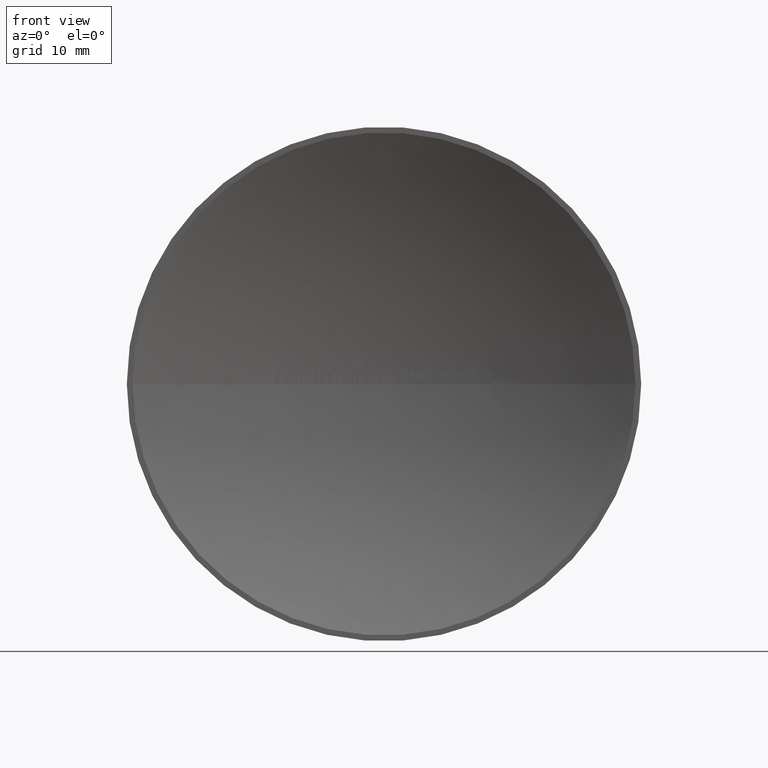
[diagram: clean part render]
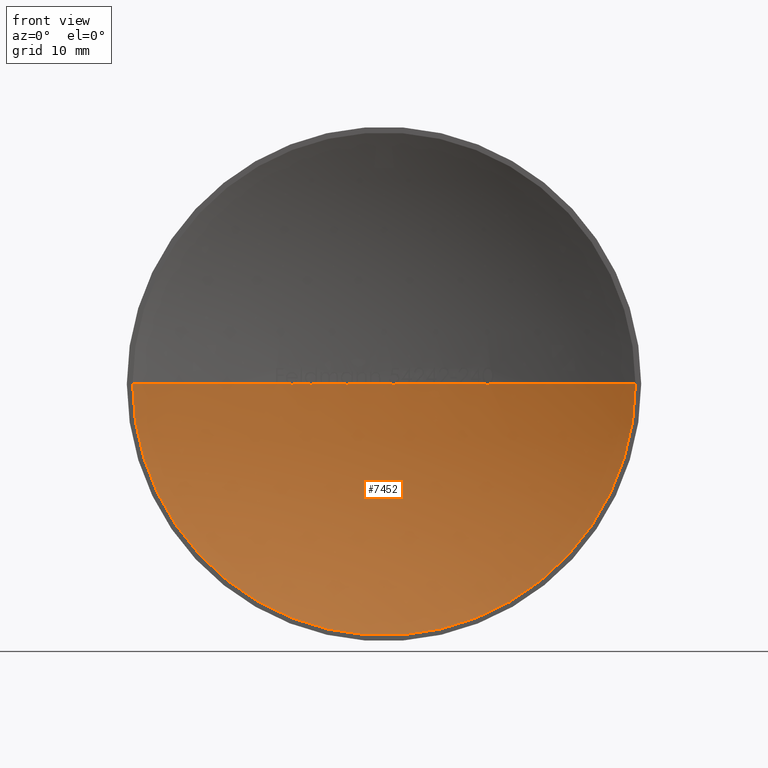
[diagram: same view with one face highlighted and labeled with its STEP entity id]
A machine part, front view. The second image highlights one B-rep face of the part: STEP entity #7452.
In plain terms, the highlighted spherical surface has radius 45.444 mm.
Its self-contained STEP definition (entity closure, byte-faithful):
#7 = VERTEX_POINT ( 'NONE', #5060 ) ;
#52 = AXIS2_PLACEMENT_3D ( 'NONE', #4242, #3375, #9981 ) ;
#78 = EDGE_CURVE ( 'NONE', #3288, #359, #9151, .T. ) ;
#129 = CARTESIAN_POINT ( 'NONE',  ( 1.386522870055565900E-014, -40.44399999999998800, 0.0000000000000000000 ) ) ;
#145 = VERTEX_POINT ( 'NONE', #4359 ) ;
#146 = EDGE_CURVE ( 'NONE', #7939, #9026, #4149, .T. ) ;
#153 = AXIS2_PLACEMENT_3D ( 'NONE', #7680, #2994, #9582 ) ;
#170 = CARTESIAN_POINT ( 'NONE',  ( 1.386522870055565900E-014, -40.44399999999998800, 0.0000000000000000000 ) ) ;
#206 = AXIS2_PLACEMENT_3D ( 'NONE', #7476, #4764, #7519 ) ;
#218 = CARTESIAN_POINT ( 'NONE',  ( -7.582456212016858800, 4.362955640970882100, -0.01618476864004236500 ) ) ;
#221 = AXIS2_PLACEMENT_3D ( 'NONE', #6128, #500, #341 ) ;
#223 = DIRECTION ( 'NONE',  ( 1.000000000000000000, 0.0000000000000000000, 0.0000000000000000000 ) ) ;
#244 = DIRECTION ( 'NONE',  ( -1.224646799147353200E-016, 8.490003973790729900E-031, -1.000000000000000000 ) ) ;
#252 = EDGE_CURVE ( 'NONE', #3780, #11537, #4039, .T. ) ;
#255 = AXIS2_PLACEMENT_3D ( 'NONE', #2142, #8778, #8849 ) ;
#278 = EDGE_CURVE ( 'NONE', #856, #11934, #3859, .T. ) ;
#279 = VERTEX_POINT ( 'NONE', #10754 ) ;
#290 = AXIS2_PLACEMENT_3D ( 'NONE', #11073, #6303, #7310 ) ;
#325 = DIRECTION ( 'NONE',  ( 1.000000000000000000, 0.0000000000000000000, 0.0000000000000000000 ) ) ;
#341 = DIRECTION ( 'NONE',  ( 1.000000000000000000, 0.0000000000000000000, 0.0000000000000000000 ) ) ;
#349 = CARTESIAN_POINT ( 'NONE',  ( 1.386522870055565900E-014, -40.44399999999998800, 0.0000000000000000000 ) ) ;
#359 = VERTEX_POINT ( 'NONE', #482 ) ;
#369 = VERTEX_POINT ( 'NONE', #8852 ) ;
#397 = DIRECTION ( 'NONE',  ( 0.0000000000000000000, 0.0000000000000000000, 1.000000000000000000 ) ) ;
#428 = DIRECTION ( 'NONE',  ( 1.000000000000000000, 0.0000000000000000000, 0.0000000000000000000 ) ) ;
#460 = B_SPLINE_CURVE_WITH_KNOTS ( 'NONE', 3,
 ( #7863, #8808, #7253, #6214, #9013, #3445, #8142, #5281 ),
 .UNSPECIFIED., .F., .F.,
 ( 4, 2, 2, 4 ),
 ( 0.0000000000000000000, 0.07062578528318842800, 0.1412515705663768600, 0.2825031411327537100 ),
 .UNSPECIFIED. ) ;
#482 = CARTESIAN_POINT ( 'NONE',  ( -2.927779441602983600, 4.905589112941658700, 1.295946971215684800E-006 ) ) ;
#500 = DIRECTION ( 'NONE',  ( 0.0000000000000000000, -0.0000000000000000000, 1.000000000000000000 ) ) ;
#504 = CARTESIAN_POINT ( 'NONE',  ( -3.007945862783082200, 4.900341785941842300, -0.01425342020220563500 ) ) ;
#526 = VERTEX_POINT ( 'NONE', #5497 ) ;
#602 = AXIS2_PLACEMENT_3D ( 'NONE', #4160, #397, #1350 ) ;
#617 = AXIS2_PLACEMENT_3D ( 'NONE', #9039, #4139, #5390 ) ;
#635 = DIRECTION ( 'NONE',  ( 0.0000000000000000000, -0.0000000000000000000, 1.000000000000000000 ) ) ;
#669 = EDGE_CURVE ( 'NONE', #6493, #3288, #9743, .T. ) ;
#718 = DIRECTION ( 'NONE',  ( 0.0000000000000000000, -0.0000000000000000000, 1.000000000000000000 ) ) ;
#720 = CARTESIAN_POINT ( 'NONE',  ( 0.9605261113449387000, 4.989857201741528100, -0.01174385527457223900 ) ) ;
#736 = ORIENTED_EDGE ( 'NONE', *, *, #12190, .T. ) ;
#772 = CARTESIAN_POINT ( 'NONE',  ( 8.719402869231778700, 4.155653869194582100, 1.965522731440673900E-005 ) ) ;
#773 = CIRCLE ( 'NONE', #1276, 45.44399999999997400 ) ;
#782 = DIRECTION ( 'NONE',  ( -1.000000000000000000, 6.871099059850044800E-015, 0.0000000000000000000 ) ) ;
#786 = EDGE_CURVE ( 'NONE', #3008, #7677, #5156, .T. ) ;
#801 = CARTESIAN_POINT ( 'NONE',  ( 0.9897537555830285800, 4.989220405862267800, -9.326486359456310800E-007 ) ) ;
#827 = CIRCLE ( 'NONE', #11592, 45.44399999999997400 ) ;
#838 = EDGE_CURVE ( 'NONE', #2328, #10165, #5437, .T. ) ;
#856 = VERTEX_POINT ( 'NONE', #3774 ) ;
#893 = ORIENTED_EDGE ( 'NONE', *, *, #786, .T. ) ;
#906 = CARTESIAN_POINT ( 'NONE',  ( 1.386522870055565900E-014, -40.44399999999998800, 0.0000000000000000000 ) ) ;
#977 = CIRCLE ( 'NONE', #9793, 45.44399999999997400 ) ;
#985 = CIRCLE ( 'NONE', #10105, 45.44399999999997400 ) ;
#1014 = AXIS2_PLACEMENT_3D ( 'NONE', #1416, #4273, #428 ) ;
#1016 = CARTESIAN_POINT ( 'NONE',  ( 1.386522870055565900E-014, -40.44399999999998800, 0.0000000000000000000 ) ) ;
#1065 = B_SPLINE_CURVE_WITH_KNOTS ( 'NONE', 3,
 ( #8885, #5130, #3243, #504, #5051, #11681, #3327, #7093 ),
 .UNSPECIFIED., .F., .F.,
 ( 4, 2, 2, 4 ),
 ( 0.6914063874239542200, 0.8457031937119785500, 0.9228515968559892800, 1.000000000000000000 ),
 .UNSPECIFIED. ) ;
#1086 = EDGE_CURVE ( 'NONE', #5740, #8655, #3537, .T. ) ;
#1103 = EDGE_CURVE ( 'NONE', #1639, #2254, #6912, .T. ) ;
#1105 = AXIS2_PLACEMENT_3D ( 'NONE', #1783, #6442, #782 ) ;
#1125 = CARTESIAN_POINT ( 'NONE',  ( -6.034217247596137300, 4.597592673342118600, -0.01696047008547005300 ) ) ;
#1170 = EDGE_CURVE ( 'NONE', #4418, #10795, #5742, .T. ) ;
#1178 = AXIS2_PLACEMENT_3D ( 'NONE', #11532, #4035, #11601 ) ;
#1195 = AXIS2_PLACEMENT_3D ( 'NONE', #7529, #1899, #2054 ) ;
#1237 = ORIENTED_EDGE ( 'NONE', *, *, #8596, .T. ) ;
#1276 = AXIS2_PLACEMENT_3D ( 'NONE', #12066, #6152, #3346 ) ;
#1300 = VERTEX_POINT ( 'NONE', #5783 ) ;
#1315 = ORIENTED_EDGE ( 'NONE', *, *, #9351, .T. ) ;
#1318 = ORIENTED_EDGE ( 'NONE', *, *, #3942, .T. ) ;
#1348 = ORIENTED_EDGE ( 'NONE', *, *, #5861, .T. ) ;
#1350 = DIRECTION ( 'NONE',  ( 1.000000000000000000, 0.0000000000000000000, 0.0000000000000000000 ) ) ;
#1396 = CARTESIAN_POINT ( 'NONE',  ( -7.711140330123209100, 4.341010751451182000, -0.01015618114161870000 ) ) ;
#1416 = CARTESIAN_POINT ( 'NONE',  ( 1.386522870055565900E-014, -40.44399999999998800, 0.0000000000000000000 ) ) ;
#1472 = ORIENTED_EDGE ( 'NONE', *, *, #7275, .T. ) ;
#1517 = EDGE_CURVE ( 'NONE', #7796, #4431, #5283, .T. ) ;
#1535 = ORIENTED_EDGE ( 'NONE', *, *, #6144, .T. ) ;
#1556 = CARTESIAN_POINT ( 'NONE',  ( 1.386522870055565900E-014, -40.44399999999998800, 0.0000000000000000000 ) ) ;
#1561 = CARTESIAN_POINT ( 'NONE',  ( 1.386522870055565900E-014, -40.44399999999998800, 0.0000000000000000000 ) ) ;
#1563 = ORIENTED_EDGE ( 'NONE', *, *, #4352, .T. ) ;
#1576 = ORIENTED_EDGE ( 'NONE', *, *, #4584, .T. ) ;
#1585 = DIRECTION ( 'NONE',  ( 0.0000000000000000000, 0.0000000000000000000, 1.000000000000000000 ) ) ;
#1590 = ORIENTED_EDGE ( 'NONE', *, *, #5166, .T. ) ;
#1627 = ORIENTED_EDGE ( 'NONE', *, *, #11787, .T. ) ;
#1639 = VERTEX_POINT ( 'NONE', #5346 ) ;
#1656 = ORIENTED_EDGE ( 'NONE', *, *, #8991, .T. ) ;
#1687 = CIRCLE ( 'NONE', #11232, 45.44399999999997400 ) ;
#1695 = AXIS2_PLACEMENT_3D ( 'NONE', #4602, #1585, #8182 ) ;
#1713 = AXIS2_PLACEMENT_3D ( 'NONE', #9282, #3133, #10676 ) ;
#1718 = CARTESIAN_POINT ( 'NONE',  ( -5.130542200854689500, 4.709456929954412500, 3.686469099980435000E-015 ) ) ;
#1722 = CIRCLE ( 'NONE', #10042, 45.44399999999997400 ) ;
#1725 = DIRECTION ( 'NONE',  ( 1.000000000000000000, 0.0000000000000000000, 0.0000000000000000000 ) ) ;
#1774 = EDGE_CURVE ( 'NONE', #7549, #2328, #9438, .T. ) ;
#1783 = CARTESIAN_POINT ( 'NONE',  ( 1.386522870055565900E-014, -40.44399999999998800, 0.0000000000000000000 ) ) ;
#1899 = DIRECTION ( 'NONE',  ( 0.0000000000000000000, -0.0000000000000000000, 1.000000000000000000 ) ) ;
#1901 = CIRCLE ( 'NONE', #7875, 45.44399999999997400 ) ;
#1946 = AXIS2_PLACEMENT_3D ( 'NONE', #7140, #9056, #6183 ) ;
#1953 = ORIENTED_EDGE ( 'NONE', *, *, #11070, .T. ) ;
#2003 = DIRECTION ( 'NONE',  ( 1.000000000000000000, 0.0000000000000000000, 0.0000000000000000000 ) ) ;
#2039 = VERTEX_POINT ( 'NONE', #9945 ) ;
#2054 = DIRECTION ( 'NONE',  ( 1.000000000000000000, 0.0000000000000000000, 0.0000000000000000000 ) ) ;
#2058 = DIRECTION ( 'NONE',  ( 1.000000000000000000, 0.0000000000000000000, 0.0000000000000000000 ) ) ;
#2104 = VERTEX_POINT ( 'NONE', #7353 ) ;
#2108 = CARTESIAN_POINT ( 'NONE',  ( 6.080328525641036200, 4.591394314031214600, -1.534501925701806600E-015 ) ) ;
#2126 = CARTESIAN_POINT ( 'NONE',  ( 1.386522870055565900E-014, -40.44399999999998800, 0.0000000000000000000 ) ) ;
#2142 = CARTESIAN_POINT ( 'NONE',  ( 1.386522870055565900E-014, -40.44399999999998800, 0.0000000000000000000 ) ) ;
#2156 = EDGE_CURVE ( 'NONE', #7172, #7949, #8833, .T. ) ;
#2240 = CARTESIAN_POINT ( 'NONE',  ( 1.386522870055565900E-014, -40.44399999999998800, 0.0000000000000000000 ) ) ;
#2254 = VERTEX_POINT ( 'NONE', #8731 ) ;
#2316 = CIRCLE ( 'NONE', #6201, 45.44399999999997400 ) ;
#2319 = VERTEX_POINT ( 'NONE', #2355 ) ;
#2328 = VERTEX_POINT ( 'NONE', #4234 ) ;
#2355 = CARTESIAN_POINT ( 'NONE',  ( 0.8021772335737311600, 4.992906772531872800, -0.03392094017094014800 ) ) ;
#2364 = AXIS2_PLACEMENT_3D ( 'NONE', #7458, #12074, #2675 ) ;
#2431 = B_SPLINE_CURVE_WITH_KNOTS ( 'NONE', 3,
 ( #1125, #3032, #4136, #6994 ),
 .UNSPECIFIED., .F., .F.,
 ( 4, 4 ),
 ( 0.0000000000000000000, 0.1700436499754869900 ),
 .UNSPECIFIED. ) ;
#2460 = ORIENTED_EDGE ( 'NONE', *, *, #1086, .F. ) ;
#2534 = DIRECTION ( 'NONE',  ( 1.000000000000000000, 0.0000000000000000000, 0.0000000000000000000 ) ) ;
#2567 = CARTESIAN_POINT ( 'NONE',  ( 1.386522870055565900E-014, -40.44399999999998800, 0.0000000000000000000 ) ) ;
#2568 = DIRECTION ( 'NONE',  ( -1.224646799147353200E-016, 8.490003973790729900E-031, -1.000000000000000000 ) ) ;
#2569 = CARTESIAN_POINT ( 'NONE',  ( 0.9287035031084793800, 4.990515660766046600, -0.02055917929054557100 ) ) ;
#2586 = EDGE_CURVE ( 'NONE', #10036, #145, #5137, .T. ) ;
#2612 = DIRECTION ( 'NONE',  ( 1.000000000000000000, 0.0000000000000000000, 0.0000000000000000000 ) ) ;
#2632 = DIRECTION ( 'NONE',  ( 1.000000000000000000, 0.0000000000000000000, 0.0000000000000000000 ) ) ;
#2642 = B_SPLINE_CURVE_WITH_KNOTS ( 'NONE', 3,
 ( #4086, #11655, #1396, #7910 ),
 .UNSPECIFIED., .F., .F.,
 ( 4, 4 ),
 ( 0.0000000000000000000, 0.1815159384721391800 ),
 .UNSPECIFIED. ) ;
#2646 = AXIS2_PLACEMENT_3D ( 'NONE', #7392, #2738, #11107 ) ;
#2675 = DIRECTION ( 'NONE',  ( 1.000000000000000000, 0.0000000000000000000, 0.0000000000000000000 ) ) ;
#2717 = B_SPLINE_CURVE_WITH_KNOTS ( 'NONE', 3,
 ( #8492, #8692, #8656, #4900, #3016, #11539, #3963, #10561 ),
 .UNSPECIFIED., .F., .F.,
 ( 4, 2, 2, 4 ),
 ( 0.6910400746160250100, 0.8455200373080125100, 0.9227600186540062500, 1.000000000000000000 ),
 .UNSPECIFIED. ) ;
#2718 = DIRECTION ( 'NONE',  ( -1.224646799147353200E-016, 8.490003973790729900E-031, -1.000000000000000000 ) ) ;
#2738 = DIRECTION ( 'NONE',  ( 0.0000000000000000000, 0.0000000000000000000, 1.000000000000000000 ) ) ;
#2766 = ORIENTED_EDGE ( 'NONE', *, *, #5546, .T. ) ;
#2781 = EDGE_CURVE ( 'NONE', #7949, #3247, #8377, .T. ) ;
#2803 = CARTESIAN_POINT ( 'NONE',  ( 1.386522870055565900E-014, -40.44399999999998800, 0.0000000000000000000 ) ) ;
#2841 = EDGE_CURVE ( 'NONE', #7796, #7677, #1901, .T. ) ;
#2879 = ORIENTED_EDGE ( 'NONE', *, *, #11557, .T. ) ;
#2903 = CARTESIAN_POINT ( 'NONE',  ( -7.563314265517511200, 4.366192450077521800, -0.01528958225220305800 ) ) ;
#2914 = CARTESIAN_POINT ( 'NONE',  ( -3.159392084742481900, 4.890060236641784500, -0.01013952956990321100 ) ) ;
#2980 = AXIS2_PLACEMENT_3D ( 'NONE', #4435, #2568, #5494 ) ;
#2989 = ORIENTED_EDGE ( 'NONE', *, *, #7358, .T. ) ;
#2994 = DIRECTION ( 'NONE',  ( 0.0000000000000000000, 0.0000000000000000000, 1.000000000000000000 ) ) ;
#3008 = VERTEX_POINT ( 'NONE', #8940 ) ;
#3016 = CARTESIAN_POINT ( 'NONE',  ( -5.984432103574649300, 4.604236409860476400, -0.01493726915056118300 ) ) ;
#3022 = DIRECTION ( 'NONE',  ( 0.0000000000000000000, -0.0000000000000000000, 1.000000000000000000 ) ) ;
#3032 = CARTESIAN_POINT ( 'NONE',  ( -6.083212377782953900, 4.591029301942148400, -0.01563040907372981500 ) ) ;
#3073 = CIRCLE ( 'NONE', #153, 45.44399999999997400 ) ;
#3095 = DIRECTION ( 'NONE',  ( -1.000000000000000000, 0.0000000000000000000, 1.224646799147353200E-016 ) ) ;
#3107 = B_SPLINE_CURVE_WITH_KNOTS ( 'NONE', 3,
 ( #772, #4530, #3672, #9231 ),
 .UNSPECIFIED., .F., .F.,
 ( 4, 4 ),
 ( 0.8193776625999253900, 1.000000000000000000 ),
 .UNSPECIFIED. ) ;
#3124 = DIRECTION ( 'NONE',  ( 0.0000000000000000000, 0.0000000000000000000, 1.000000000000000000 ) ) ;
#3131 = CARTESIAN_POINT ( 'NONE',  ( -5.520633012820495900, 4.663424523439103600, 3.682710870694032000E-015 ) ) ;
#3133 = DIRECTION ( 'NONE',  ( 0.0000000000000000000, -0.0000000000000000000, 1.000000000000000000 ) ) ;
#3188 = EDGE_CURVE ( 'NONE', #7984, #526, #10606, .T. ) ;
#3243 = CARTESIAN_POINT ( 'NONE',  ( -2.973094060320622800, 4.902645914867394900, -0.01009331753702295100 ) ) ;
#3247 = VERTEX_POINT ( 'NONE', #5377 ) ;
#3284 = EDGE_CURVE ( 'NONE', #3247, #5040, #4546, .T. ) ;
#3288 = VERTEX_POINT ( 'NONE', #4822 ) ;
#3327 = CARTESIAN_POINT ( 'NONE',  ( -3.050867774167456100, 4.897474395146863600, -0.01660656195834299800 ) ) ;
#3346 = DIRECTION ( 'NONE',  ( -1.000000000000000000, 0.0000000000000000000, 1.224646799147353200E-016 ) ) ;
#3375 = DIRECTION ( 'NONE',  ( -1.224646799147353200E-016, 8.490003973790729900E-031, -1.000000000000000000 ) ) ;
#3391 = ORIENTED_EDGE ( 'NONE', *, *, #2586, .T. ) ;
#3422 = ORIENTED_EDGE ( 'NONE', *, *, #11078, .F. ) ;
#3445 = CARTESIAN_POINT ( 'NONE',  ( 0.6866705201724397900, 4.994817484445439600, -0.01999474291888657400 ) ) ;
#3453 = AXIS2_PLACEMENT_3D ( 'NONE', #5683, #8537, #6530 ) ;
#3462 = ORIENTED_EDGE ( 'NONE', *, *, #2841, .F. ) ;
#3537 = CIRCLE ( 'NONE', #2980, 45.44399999999997400 ) ;
#3602 = VERTEX_POINT ( 'NONE', #6989 ) ;
#3620 = ORIENTED_EDGE ( 'NONE', *, *, #3284, .T. ) ;
#3629 = EDGE_CURVE ( 'NONE', #7226, #8819, #5715, .T. ) ;
#3672 = CARTESIAN_POINT ( 'NONE',  ( 8.617730619931162300, 4.175440570265496200, -0.03305188456763583100 ) ) ;
#3700 = ORIENTED_EDGE ( 'NONE', *, *, #7247, .T. ) ;
#3727 = ORIENTED_EDGE ( 'NONE', *, *, #7583, .F. ) ;
#3774 = CARTESIAN_POINT ( 'NONE',  ( 8.719402869231778700, 4.155653869194582100, 1.965522731440673900E-005 ) ) ;
#3780 = VERTEX_POINT ( 'NONE', #10522 ) ;
#3859 = CIRCLE ( 'NONE', #52, 45.44399999999997400 ) ;
#3860 = CARTESIAN_POINT ( 'NONE',  ( -7.597584501210573800, 4.360392700711645200, -0.01662976280044111900 ) ) ;
#3872 = ORIENTED_EDGE ( 'NONE', *, *, #9295, .T. ) ;
#3883 = DIRECTION ( 'NONE',  ( 0.0000000000000000000, -0.0000000000000000000, 1.000000000000000000 ) ) ;
#3942 = EDGE_CURVE ( 'NONE', #8819, #5190, #9256, .T. ) ;
#3946 = CARTESIAN_POINT ( 'NONE',  ( -3.114818949246199500, 4.893150076404786800, -0.01563885616926038300 ) ) ;
#3948 = DIRECTION ( 'NONE',  ( 1.000000000000000000, -6.932614350277812000E-015, 0.0000000000000000000 ) ) ;
#3963 = CARTESIAN_POINT ( 'NONE',  ( -6.018974226888147400, 4.599634912213809400, -0.01660712265325138900 ) ) ;
#3980 = CARTESIAN_POINT ( 'NONE',  ( -7.490817516281964600, 4.378374364655221600, -0.005486537845554070000 ) ) ;
#4035 = DIRECTION ( 'NONE',  ( 0.0000000000000000000, 0.0000000000000000000, 1.000000000000000000 ) ) ;
#4039 = B_SPLINE_CURVE_WITH_KNOTS ( 'NONE', 3,
 ( #6634, #3946, #2914, #5745 ),
 .UNSPECIFIED., .F., .F.,
 ( 4, 4 ),
 ( 0.0000000000000000000, 0.1700437790953350500 ),
 .UNSPECIFIED. ) ;
#4051 = CIRCLE ( 'NONE', #10544, 45.44399999999997400 ) ;
#4086 = CARTESIAN_POINT ( 'NONE',  ( -7.612335987580124200, 4.357888232022613600, -0.01696047008547008100 ) ) ;
#4110 = AXIS2_PLACEMENT_3D ( 'NONE', #2803, #4784, #11380 ) ;
#4136 = CARTESIAN_POINT ( 'NONE',  ( -6.127765438851748000, 4.584982481307079600, -0.01005709664951727800 ) ) ;
#4139 = DIRECTION ( 'NONE',  ( 0.0000000000000000000, -0.0000000000000000000, 1.000000000000000000 ) ) ;
#4149 = CIRCLE ( 'NONE', #1946, 45.44399999999997400 ) ;
#4160 = CARTESIAN_POINT ( 'NONE',  ( 1.386522870055565900E-014, -40.44399999999998800, 0.0000000000000000000 ) ) ;
#4172 = CIRCLE ( 'NONE', #6426, 45.44399999999997400 ) ;
#4234 = CARTESIAN_POINT ( 'NONE',  ( -3.926348824786315200, 4.830064550315097600, 2.404195260305467900E-016 ) ) ;
#4242 = CARTESIAN_POINT ( 'NONE',  ( 1.386522870055565900E-014, -40.44399999999998800, 0.0000000000000000000 ) ) ;
#4251 = DIRECTION ( 'NONE',  ( 0.0000000000000000000, 0.0000000000000000000, 1.000000000000000000 ) ) ;
#4255 = CIRCLE ( 'NONE', #602, 45.44399999999997400 ) ;
#4273 = DIRECTION ( 'NONE',  ( 0.0000000000000000000, -0.0000000000000000000, 1.000000000000000000 ) ) ;
#4305 = EDGE_CURVE ( 'NONE', #9026, #6435, #985, .T. ) ;
#4352 = EDGE_CURVE ( 'NONE', #5740, #2319, #8242, .T. ) ;
#4356 = CIRCLE ( 'NONE', #255, 45.44399999999997400 ) ;
#4359 = CARTESIAN_POINT ( 'NONE',  ( 2.416866987179505900, 4.935685873376000300, 2.926458784448106600E-016 ) ) ;
#4364 = CARTESIAN_POINT ( 'NONE',  ( 1.386522870055565900E-014, -40.44399999999998800, 0.0000000000000000000 ) ) ;
#4418 = VERTEX_POINT ( 'NONE', #9470 ) ;
#4431 = VERTEX_POINT ( 'NONE', #6556 ) ;
#4435 = CARTESIAN_POINT ( 'NONE',  ( 1.386522870055565900E-014, -40.44399999999998800, 0.0000000000000000000 ) ) ;
#4474 = ORIENTED_EDGE ( 'NONE', *, *, #4305, .T. ) ;
#4530 = CARTESIAN_POINT ( 'NONE',  ( 8.668789947824747000, 4.165549171861231400, -0.02265688965517985400 ) ) ;
#4546 = CIRCLE ( 'NONE', #1713, 45.44399999999997400 ) ;
#4574 = ORIENTED_EDGE ( 'NONE', *, *, #146, .T. ) ;
#4584 = EDGE_CURVE ( 'NONE', #6435, #11934, #5396, .T. ) ;
#4602 = CARTESIAN_POINT ( 'NONE',  ( 1.386522870055565900E-014, -40.44399999999998800, 0.0000000000000000000 ) ) ;
#4705 = CARTESIAN_POINT ( 'NONE',  ( -2.162459935897427200, 4.948520342294695100, 3.705986982828153000E-015 ) ) ;
#4764 = DIRECTION ( 'NONE',  ( -1.224646799147353200E-016, 8.490003973790729900E-031, -1.000000000000000000 ) ) ;
#4784 = DIRECTION ( 'NONE',  ( 0.0000000000000000000, -0.0000000000000000000, 1.000000000000000000 ) ) ;
#4786 = CARTESIAN_POINT ( 'NONE',  ( -3.807625534188022500, 4.840203910319525300, 3.697143691380588700E-015 ) ) ;
#4808 = AXIS2_PLACEMENT_3D ( 'NONE', #8643, #9596, #3948 ) ;
#4811 = DIRECTION ( 'NONE',  ( 1.000000000000000000, 0.0000000000000000000, 0.0000000000000000000 ) ) ;
#4822 = CARTESIAN_POINT ( 'NONE',  ( -2.671274038461529400, 4.921421093729973600, 1.635683600423870400E-016 ) ) ;
#4900 = CARTESIAN_POINT ( 'NONE',  ( -5.976072763119111300, 4.605346562001396500, -0.01425453198340539300 ) ) ;
#4955 = CIRCLE ( 'NONE', #2364, 45.44399999999997400 ) ;
#4980 = CIRCLE ( 'NONE', #1014, 45.44399999999997400 ) ;
#5022 = AXIS2_PLACEMENT_3D ( 'NONE', #8465, #10451, #9371 ) ;
#5040 = VERTEX_POINT ( 'NONE', #3131 ) ;
#5042 = ORIENTED_EDGE ( 'NONE', *, *, #6544, .F. ) ;
#5051 = CARTESIAN_POINT ( 'NONE',  ( -3.016297749338368500, 4.899786540277142800, -0.01493459624960559500 ) ) ;
#5060 = CARTESIAN_POINT ( 'NONE',  ( 7.844217414529929900, 4.317874281061833100, 2.260554515680950300E-015 ) ) ;
#5130 = CARTESIAN_POINT ( 'NONE',  ( -2.950136474603121300, 4.904145857532941300, -0.005770487549314892500 ) ) ;
#5137 = CIRCLE ( 'NONE', #2646, 45.44399999999997400 ) ;
#5156 = CIRCLE ( 'NONE', #5022, 45.44399999999997400 ) ;
#5159 = EDGE_CURVE ( 'NONE', #279, #145, #827, .T. ) ;
#5166 = EDGE_CURVE ( 'NONE', #5563, #5847, #4255, .T. ) ;
#5190 = VERTEX_POINT ( 'NONE', #11652 ) ;
#5281 = CARTESIAN_POINT ( 'NONE',  ( 0.6348561577519245000, 4.995565177155809200, 8.351823657495984300E-006 ) ) ;
#5283 = CIRCLE ( 'NONE', #5721, 45.44399999999997400 ) ;
#5293 = DIRECTION ( 'NONE',  ( 0.0000000000000000000, -0.0000000000000000000, 1.000000000000000000 ) ) ;
#5315 = EDGE_CURVE ( 'NONE', #5847, #7226, #4980, .T. ) ;
#5346 = CARTESIAN_POINT ( 'NONE',  ( 4.180755876068388900, 4.807280825018852800, 2.514844345901704400E-015 ) ) ;
#5377 = CARTESIAN_POINT ( 'NONE',  ( -5.249265491452982600, 4.695808903009769600, 0.0000000000000000000 ) ) ;
#5390 = DIRECTION ( 'NONE',  ( 1.000000000000000000, 0.0000000000000000000, 0.0000000000000000000 ) ) ;
#5396 = CIRCLE ( 'NONE', #4808, 20.72293415518182500 ) ;
#5437 = CIRCLE ( 'NONE', #6495, 45.44399999999997400 ) ;
#5451 = CARTESIAN_POINT ( 'NONE',  ( 0.8021772335737311600, 4.992906772531872800, -0.03392094017094014800 ) ) ;
#5492 = EDGE_CURVE ( 'NONE', #526, #6686, #10821, .T. ) ;
#5494 = DIRECTION ( 'NONE',  ( -1.000000000000000000, 0.0000000000000000000, 1.224646799147353200E-016 ) ) ;
#5497 = CARTESIAN_POINT ( 'NONE',  ( -7.469783395655344500, 4.381879298184917300, 2.620190242330676900E-006 ) ) ;
#5511 = EDGE_CURVE ( 'NONE', #279, #8655, #3073, .T. ) ;
#5546 = EDGE_CURVE ( 'NONE', #2039, #369, #2431, .T. ) ;
#5563 = VERTEX_POINT ( 'NONE', #6625 ) ;
#5616 = DIRECTION ( 'NONE',  ( -1.000000000000000000, 0.0000000000000000000, 1.224646799147353200E-016 ) ) ;
#5683 = CARTESIAN_POINT ( 'NONE',  ( 1.386522870055565900E-014, -40.44399999999998800, 0.0000000000000000000 ) ) ;
#5707 = CIRCLE ( 'NONE', #4110, 45.44399999999997400 ) ;
#5710 = ORIENTED_EDGE ( 'NONE', *, *, #3629, .T. ) ;
#5715 = CIRCLE ( 'NONE', #290, 45.44399999999997400 ) ;
#5721 = AXIS2_PLACEMENT_3D ( 'NONE', #1556, #10109, #8194 ) ;
#5740 = VERTEX_POINT ( 'NONE', #11945 ) ;
#5742 = CIRCLE ( 'NONE', #206, 45.44399999999997400 ) ;
#5745 = CARTESIAN_POINT ( 'NONE',  ( -3.199787494893421500, 4.887208717260124400, -1.785288228594262400E-006 ) ) ;
#5774 = DIRECTION ( 'NONE',  ( 1.000000000000000000, 0.0000000000000000000, 0.0000000000000000000 ) ) ;
#5783 = CARTESIAN_POINT ( 'NONE',  ( -2.281183226495717700, 4.942708837358471100, 0.0000000000000000000 ) ) ;
#5814 = CARTESIAN_POINT ( 'NONE',  ( -7.604475043088097400, 4.359223954980875800, -0.01679773684811371500 ) ) ;
#5847 = VERTEX_POINT ( 'NONE', #12200 ) ;
#5849 = DIRECTION ( 'NONE',  ( 0.0000000000000000000, -0.0000000000000000000, 1.000000000000000000 ) ) ;
#5861 = EDGE_CURVE ( 'NONE', #3602, #7939, #5707, .T. ) ;
#5900 = DIRECTION ( 'NONE',  ( 0.0000000000000000000, -0.0000000000000000000, 1.000000000000000000 ) ) ;
#5943 = ORIENTED_EDGE ( 'NONE', *, *, #6367, .T. ) ;
#5970 = SPHERICAL_SURFACE ( 'NONE', #1105, 45.44399999999997400 ) ;
#5989 = DIRECTION ( 'NONE',  ( 1.000000000000000000, 0.0000000000000000000, 0.0000000000000000000 ) ) ;
#5995 = CARTESIAN_POINT ( 'NONE',  ( 1.386522870055565900E-014, -40.44399999999998800, 0.0000000000000000000 ) ) ;
#6036 = ORIENTED_EDGE ( 'NONE', *, *, #8479, .T. ) ;
#6076 = CARTESIAN_POINT ( 'NONE',  ( 1.386522870055565900E-014, -40.44399999999998800, 0.0000000000000000000 ) ) ;
#6089 = CARTESIAN_POINT ( 'NONE',  ( 8.498479033216115800, 4.198306911741711100, -0.03291248636908879200 ) ) ;
#6092 = CIRCLE ( 'NONE', #1195, 45.44399999999997400 ) ;
#6100 = B_SPLINE_CURVE_WITH_KNOTS ( 'NONE', 3,
 ( #10813, #6089, #7926, #10730 ),
 .UNSPECIFIED., .F., .F.,
 ( 4, 4 ),
 ( 0.0000000000000000000, 0.1800159025797429500 ),
 .UNSPECIFIED. ) ;
#6128 = CARTESIAN_POINT ( 'NONE',  ( 1.386522870055565900E-014, -40.44399999999998800, 0.0000000000000000000 ) ) ;
#6144 = EDGE_CURVE ( 'NONE', #11537, #7549, #2316, .T. ) ;
#6152 = DIRECTION ( 'NONE',  ( -1.224646799147353200E-016, 8.490003973790729900E-031, -1.000000000000000000 ) ) ;
#6183 = DIRECTION ( 'NONE',  ( 1.000000000000000000, 0.0000000000000000000, 0.0000000000000000000 ) ) ;
#6194 = ORIENTED_EDGE ( 'NONE', *, *, #10432, .F. ) ;
#6201 = AXIS2_PLACEMENT_3D ( 'NONE', #4364, #5293, #2534 ) ;
#6207 = DIRECTION ( 'NONE',  ( 0.0000000000000000000, 0.0000000000000000000, 1.000000000000000000 ) ) ;
#6214 = CARTESIAN_POINT ( 'NONE',  ( 0.7432978526006389600, 4.993913020406130200, -0.03002710958443321000 ) ) ;
#6221 = ORIENTED_EDGE ( 'NONE', *, *, #8762, .T. ) ;
#6303 = DIRECTION ( 'NONE',  ( 0.0000000000000000000, 0.0000000000000000000, 1.000000000000000000 ) ) ;
#6367 = EDGE_CURVE ( 'NONE', #10613, #8359, #1722, .T. ) ;
#6392 = EDGE_CURVE ( 'NONE', #2104, #7984, #6575, .T. ) ;
#6426 = AXIS2_PLACEMENT_3D ( 'NONE', #10834, #6817, #2058 ) ;
#6435 = VERTEX_POINT ( 'NONE', #7774 ) ;
#6442 = DIRECTION ( 'NONE',  ( 0.0000000000000000000, 0.0000000000000000000, -1.000000000000000000 ) ) ;
#6493 = VERTEX_POINT ( 'NONE', #8174 ) ;
#6495 = AXIS2_PLACEMENT_3D ( 'NONE', #8627, #5849, #5774 ) ;
#6530 = DIRECTION ( 'NONE',  ( 1.000000000000000000, 0.0000000000000000000, 0.0000000000000000000 ) ) ;
#6544 = EDGE_CURVE ( 'NONE', #3008, #8256, #977, .T. ) ;
#6556 = CARTESIAN_POINT ( 'NONE',  ( 4.452123397435909300, 4.781388149290688000, -7.228014483236696600E-016 ) ) ;
#6575 = CIRCLE ( 'NONE', #1178, 45.44399999999997400 ) ;
#6616 = DIRECTION ( 'NONE',  ( -1.000000000000000000, 0.0000000000000000000, 1.224646799147353200E-016 ) ) ;
#6625 = CARTESIAN_POINT ( 'NONE',  ( -0.3137686965811811700, 4.998916777040673900, 2.801788920243179700E-015 ) ) ;
#6634 = CARTESIAN_POINT ( 'NONE',  ( -3.066134982638879100, 4.896441821961674100, -0.01696047008546967500 ) ) ;
#6671 = CARTESIAN_POINT ( 'NONE',  ( 1.386522870055565900E-014, -40.44399999999998800, 0.0000000000000000000 ) ) ;
#6686 = VERTEX_POINT ( 'NONE', #10330 ) ;
#6739 = DIRECTION ( 'NONE',  ( -1.224646799147353200E-016, 8.490003973790729900E-031, -1.000000000000000000 ) ) ;
#6771 = CARTESIAN_POINT ( 'NONE',  ( 8.557882194845097600, 4.186915716675264900, -0.03392094017093993900 ) ) ;
#6791 = CARTESIAN_POINT ( 'NONE',  ( -7.612335987580124200, 4.357888232022613600, -0.01696047008547008100 ) ) ;
#6817 = DIRECTION ( 'NONE',  ( 0.0000000000000000000, 0.0000000000000000000, 1.000000000000000000 ) ) ;
#6851 = CARTESIAN_POINT ( 'NONE',  ( -4.587807158119648700, 4.767825460601622800, 2.809221675648468700E-016 ) ) ;
#6900 = AXIS2_PLACEMENT_3D ( 'NONE', #9046, #6207, #11841 ) ;
#6912 = CIRCLE ( 'NONE', #1695, 45.44399999999997400 ) ;
#6963 = CARTESIAN_POINT ( 'NONE',  ( 8.397078648830827800, 4.217462108946975300, 6.520634189144411600E-006 ) ) ;
#6989 = CARTESIAN_POINT ( 'NONE',  ( -7.752209168377945900, 4.333900322272185700, -4.542404212714606300E-007 ) ) ;
#6994 = CARTESIAN_POINT ( 'NONE',  ( -6.167846079576883700, 4.579491621127852200, -1.583927414146661800E-006 ) ) ;
#7062 = AXIS2_PLACEMENT_3D ( 'NONE', #6671, #10380, #2003 ) ;
#7093 = CARTESIAN_POINT ( 'NONE',  ( -3.066134982638879100, 4.896441821961674100, -0.01696047008546967500 ) ) ;
#7140 = CARTESIAN_POINT ( 'NONE',  ( 1.386522870055565900E-014, -40.44399999999998800, 0.0000000000000000000 ) ) ;
#7172 = VERTEX_POINT ( 'NONE', #6851 ) ;
#7178 = EDGE_CURVE ( 'NONE', #10165, #7172, #11144, .T. ) ;
#7184 = CARTESIAN_POINT ( 'NONE',  ( 5.351028311965826000, 4.683858712823271400, 3.684379181668868600E-015 ) ) ;
#7219 = ORIENTED_EDGE ( 'NONE', *, *, #7178, .T. ) ;
#7224 = ORIENTED_EDGE ( 'NONE', *, *, #1774, .T. ) ;
#7226 = VERTEX_POINT ( 'NONE', #11020 ) ;
#7247 = EDGE_CURVE ( 'NONE', #8905, #9835, #6100, .T. ) ;
#7253 = CARTESIAN_POINT ( 'NONE',  ( 0.7712337334837979800, 4.993445578581120300, -0.03272303163422604600 ) ) ;
#7260 = CARTESIAN_POINT ( 'NONE',  ( 0.8666969802506714300, 4.991734673395524300, -0.03126080872403411800 ) ) ;
#7275 = EDGE_CURVE ( 'NONE', #4418, #5563, #9235, .T. ) ;
#7298 = DIRECTION ( 'NONE',  ( 1.000000000000000000, 0.0000000000000000000, 0.0000000000000000000 ) ) ;
#7310 = DIRECTION ( 'NONE',  ( 1.000000000000000000, 0.0000000000000000000, 0.0000000000000000000 ) ) ;
#7353 = CARTESIAN_POINT ( 'NONE',  ( -6.775707799145293600, 4.492031420460356200, 3.166430795681654200E-015 ) ) ;
#7358 = EDGE_CURVE ( 'NONE', #7, #8256, #4955, .T. ) ;
#7392 = CARTESIAN_POINT ( 'NONE',  ( 1.386522870055565900E-014, -40.44399999999998800, 0.0000000000000000000 ) ) ;
#7452 = ADVANCED_FACE ( 'NONE', ( #10705 ), #5970, .F. ) ;
#7458 = CARTESIAN_POINT ( 'NONE',  ( 1.386522870055565900E-014, -40.44399999999998800, 0.0000000000000000000 ) ) ;
#7467 = CARTESIAN_POINT ( 'NONE',  ( 1.386522870055565900E-014, -40.44399999999998800, 0.0000000000000000000 ) ) ;
#7476 = CARTESIAN_POINT ( 'NONE',  ( 1.386522870055565900E-014, -40.44399999999998800, 0.0000000000000000000 ) ) ;
#7505 = AXIS2_PLACEMENT_3D ( 'NONE', #129, #3022, #325 ) ;
#7519 = DIRECTION ( 'NONE',  ( -1.000000000000000000, 0.0000000000000000000, 1.224646799147353200E-016 ) ) ;
#7529 = CARTESIAN_POINT ( 'NONE',  ( 1.386522870055565900E-014, -40.44399999999998800, 0.0000000000000000000 ) ) ;
#7549 = VERTEX_POINT ( 'NONE', #4786 ) ;
#7583 = EDGE_CURVE ( 'NONE', #7, #9835, #8790, .T. ) ;
#7623 = DIRECTION ( 'NONE',  ( -1.000000000000000000, 0.0000000000000000000, 1.224646799147353200E-016 ) ) ;
#7633 = CARTESIAN_POINT ( 'NONE',  ( -7.585744677876954600, 4.362398924974906200, -0.01628311080526798400 ) ) ;
#7677 = VERTEX_POINT ( 'NONE', #2108 ) ;
#7680 = CARTESIAN_POINT ( 'NONE',  ( 1.386522870055565900E-014, -40.44399999999998800, 0.0000000000000000000 ) ) ;
#7725 = DIRECTION ( 'NONE',  ( -1.224646799147353200E-016, 8.490003973790729900E-031, -1.000000000000000000 ) ) ;
#7774 = CARTESIAN_POINT ( 'NONE',  ( -20.72293415518153000, 2.826009576832199400E-013, 0.0000000000000000000 ) ) ;
#7796 = VERTEX_POINT ( 'NONE', #7184 ) ;
#7863 = CARTESIAN_POINT ( 'NONE',  ( 0.8021772335737311600, 4.992906772531872800, -0.03392094017094014800 ) ) ;
#7875 = AXIS2_PLACEMENT_3D ( 'NONE', #906, #2718, #6616 ) ;
#7910 = CARTESIAN_POINT ( 'NONE',  ( -7.752209168377945900, 4.333900322272185700, -4.542404212714606300E-007 ) ) ;
#7926 = CARTESIAN_POINT ( 'NONE',  ( 8.446894735989861400, 4.208095975243797000, -0.02268116086036290800 ) ) ;
#7939 = VERTEX_POINT ( 'NONE', #11974 ) ;
#7942 = CARTESIAN_POINT ( 'NONE',  ( 3.315771901709417600, 4.878872732162878200, 3.700300734640407700E-015 ) ) ;
#7949 = VERTEX_POINT ( 'NONE', #1718 ) ;
#7984 = VERTEX_POINT ( 'NONE', #10985 ) ;
#8011 = CIRCLE ( 'NONE', #12014, 45.44399999999997400 ) ;
#8142 = CARTESIAN_POINT ( 'NONE',  ( 0.6620939031873897000, 4.995184740816686300, -0.01235894482159220800 ) ) ;
#8144 = CARTESIAN_POINT ( 'NONE',  ( -4.469083867521355600, 4.779715298337217500, 3.692205212377321600E-015 ) ) ;
#8174 = CARTESIAN_POINT ( 'NONE',  ( -2.552550747863238100, 4.928256067773199700, 3.704332544232833900E-015 ) ) ;
#8182 = DIRECTION ( 'NONE',  ( 1.000000000000000000, 0.0000000000000000000, 0.0000000000000000000 ) ) ;
#8194 = DIRECTION ( 'NONE',  ( 1.000000000000000000, 0.0000000000000000000, 0.0000000000000000000 ) ) ;
#8200 = DIRECTION ( 'NONE',  ( 0.0000000000000000000, 0.0000000000000000000, 1.000000000000000000 ) ) ;
#8242 = B_SPLINE_CURVE_WITH_KNOTS ( 'NONE', 3,
 ( #801, #720, #2569, #7260, #10175, #5451 ),
 .UNSPECIFIED., .F., .F.,
 ( 4, 2, 4 ),
 ( 0.7374048665363307500, 0.8687024332681654300, 1.000000000000000000 ),
 .UNSPECIFIED. ) ;
#8256 = VERTEX_POINT ( 'NONE', #10992 ) ;
#8359 = VERTEX_POINT ( 'NONE', #4705 ) ;
#8370 = ORIENTED_EDGE ( 'NONE', *, *, #3188, .T. ) ;
#8377 = CIRCLE ( 'NONE', #9377, 45.44399999999997400 ) ;
#8378 = DIRECTION ( 'NONE',  ( -1.224646799147353200E-016, 8.490003973790729900E-031, -1.000000000000000000 ) ) ;
#8383 = ORIENTED_EDGE ( 'NONE', *, *, #252, .T. ) ;
#8465 = CARTESIAN_POINT ( 'NONE',  ( 1.386522870055565900E-014, -40.44399999999998800, 0.0000000000000000000 ) ) ;
#8479 = EDGE_CURVE ( 'NONE', #10514, #9345, #9676, .T. ) ;
#8492 = CARTESIAN_POINT ( 'NONE',  ( -5.895903527774654800, 4.615909528692020200, -3.553553641218961900E-006 ) ) ;
#8537 = DIRECTION ( 'NONE',  ( 0.0000000000000000000, -0.0000000000000000000, 1.000000000000000000 ) ) ;
#8549 = CARTESIAN_POINT ( 'NONE',  ( -7.516332288129052400, 4.374103212061883500, -0.01037936756708943300 ) ) ;
#8596 = EDGE_CURVE ( 'NONE', #6686, #3602, #2642, .T. ) ;
#8627 = CARTESIAN_POINT ( 'NONE',  ( 1.386522870055565900E-014, -40.44399999999998800, 0.0000000000000000000 ) ) ;
#8643 = CARTESIAN_POINT ( 'NONE',  ( -3.466307175138804000E-014, 1.370431546021677600E-013, 0.0000000000000000000 ) ) ;
#8655 = VERTEX_POINT ( 'NONE', #9226 ) ;
#8656 = CARTESIAN_POINT ( 'NONE',  ( -5.941311329425388100, 4.609949966402495200, -0.01010999891702426400 ) ) ;
#8657 = CARTESIAN_POINT ( 'NONE',  ( -5.895903527774654800, 4.615909528692020200, -3.553553641218961900E-006 ) ) ;
#8692 = CARTESIAN_POINT ( 'NONE',  ( -5.918625449243786600, 4.612936578889263100, -0.005861447188477315900 ) ) ;
#8731 = CARTESIAN_POINT ( 'NONE',  ( 4.062032585470099400, 4.818092608214419300, -2.487277601913899400E-016 ) ) ;
#8762 = EDGE_CURVE ( 'NONE', #1300, #6493, #6092, .T. ) ;
#8769 = DIRECTION ( 'NONE',  ( 0.0000000000000000000, -0.0000000000000000000, 1.000000000000000000 ) ) ;
#8778 = DIRECTION ( 'NONE',  ( 0.0000000000000000000, 0.0000000000000000000, 1.000000000000000000 ) ) ;
#8790 = CIRCLE ( 'NONE', #9725, 45.44399999999997400 ) ;
#8805 = CARTESIAN_POINT ( 'NONE',  ( 1.386522870055565900E-014, -40.44399999999998800, 0.0000000000000000000 ) ) ;
#8807 = ORIENTED_EDGE ( 'NONE', *, *, #5315, .T. ) ;
#8808 = CARTESIAN_POINT ( 'NONE',  ( 0.7862024149999200500, 4.993189040871452100, -0.03360360050696419000 ) ) ;
#8819 = VERTEX_POINT ( 'NONE', #10636 ) ;
#8831 = CARTESIAN_POINT ( 'NONE',  ( -5.639356303418789000, 4.648735517853535400, 3.453109823116837700E-016 ) ) ;
#8833 = CIRCLE ( 'NONE', #11891, 45.44399999999997400 ) ;
#8845 = ORIENTED_EDGE ( 'NONE', *, *, #5492, .T. ) ;
#8849 = DIRECTION ( 'NONE',  ( 1.000000000000000000, 0.0000000000000000000, 0.0000000000000000000 ) ) ;
#8852 = CARTESIAN_POINT ( 'NONE',  ( -6.167846079576883700, 4.579491621127852200, -1.583927414146661800E-006 ) ) ;
#8885 = CARTESIAN_POINT ( 'NONE',  ( -2.927779441602983600, 4.905589112941658700, 1.295946971215684800E-006 ) ) ;
#8905 = VERTEX_POINT ( 'NONE', #6771 ) ;
#8940 = CARTESIAN_POINT ( 'NONE',  ( 6.979233440170949300, 4.460870967274797900, 3.666173766413199600E-015 ) ) ;
#8991 = EDGE_CURVE ( 'NONE', #2319, #10795, #460, .T. ) ;
#9013 = CARTESIAN_POINT ( 'NONE',  ( 0.7312334414536484400, 4.994110139505176300, -0.02844729752604750100 ) ) ;
#9026 = VERTEX_POINT ( 'NONE', #11883 ) ;
#9039 = CARTESIAN_POINT ( 'NONE',  ( 1.386522870055565900E-014, -40.44399999999998800, 0.0000000000000000000 ) ) ;
#9046 = CARTESIAN_POINT ( 'NONE',  ( 1.386522870055565900E-014, -40.44399999999998800, 0.0000000000000000000 ) ) ;
#9056 = DIRECTION ( 'NONE',  ( 0.0000000000000000000, 0.0000000000000000000, 1.000000000000000000 ) ) ;
#9081 = CARTESIAN_POINT ( 'NONE',  ( 0.6348561577519245000, 4.995565177155809200, 8.351823657495984300E-006 ) ) ;
#9151 = CIRCLE ( 'NONE', #10237, 45.44399999999997400 ) ;
#9226 = CARTESIAN_POINT ( 'NONE',  ( 2.026776175213693700, 4.954780978519514700, -1.241042477781581800E-016 ) ) ;
#9231 = CARTESIAN_POINT ( 'NONE',  ( 8.557882194845097600, 4.186915716675264900, -0.03392094017093993900 ) ) ;
#9235 = CIRCLE ( 'NONE', #617, 45.44399999999997400 ) ;
#9238 = ORIENTED_EDGE ( 'NONE', *, *, #5511, .T. ) ;
#9256 = CIRCLE ( 'NONE', #221, 45.44399999999997400 ) ;
#9265 = CARTESIAN_POINT ( 'NONE',  ( 20.72293415518179000, -3.310478050953976700E-015, -2.537827498208437800E-015 ) ) ;
#9274 = CARTESIAN_POINT ( 'NONE',  ( -3.199787494893421500, 4.887208717260124400, -1.785288228594262400E-006 ) ) ;
#9282 = CARTESIAN_POINT ( 'NONE',  ( 1.386522870055565900E-014, -40.44399999999998800, 0.0000000000000000000 ) ) ;
#9295 = EDGE_CURVE ( 'NONE', #369, #2104, #1687, .T. ) ;
#9345 = VERTEX_POINT ( 'NONE', #8657 ) ;
#9351 = EDGE_CURVE ( 'NONE', #5190, #10613, #4356, .T. ) ;
#9371 = DIRECTION ( 'NONE',  ( 1.000000000000000000, 0.0000000000000000000, 0.0000000000000000000 ) ) ;
#9377 = AXIS2_PLACEMENT_3D ( 'NONE', #1561, #8200, #2632 ) ;
#9438 = CIRCLE ( 'NONE', #7062, 45.44399999999997400 ) ;
#9469 = ORIENTED_EDGE ( 'NONE', *, *, #78, .T. ) ;
#9470 = CARTESIAN_POINT ( 'NONE',  ( 3.261283127775577500E-013, 4.999999999999990200, 0.0000000000000000000 ) ) ;
#9492 = AXIS2_PLACEMENT_3D ( 'NONE', #349, #3124, #5989 ) ;
#9501 = CARTESIAN_POINT ( 'NONE',  ( -7.469783395655344500, 4.381879298184917300, 2.620190242330676900E-006 ) ) ;
#9582 = DIRECTION ( 'NONE',  ( 1.000000000000000000, 0.0000000000000000000, 0.0000000000000000000 ) ) ;
#9589 = ORIENTED_EDGE ( 'NONE', *, *, #669, .T. ) ;
#9596 = DIRECTION ( 'NONE',  ( -6.932614350277811200E-015, -1.000000000000000000, -0.0000000000000000000 ) ) ;
#9676 = CIRCLE ( 'NONE', #7505, 45.44399999999997400 ) ;
#9725 = AXIS2_PLACEMENT_3D ( 'NONE', #170, #6739, #7623 ) ;
#9743 = CIRCLE ( 'NONE', #6900, 45.44399999999997400 ) ;
#9764 = ORIENTED_EDGE ( 'NONE', *, *, #1517, .T. ) ;
#9793 = AXIS2_PLACEMENT_3D ( 'NONE', #7467, #8378, #5616 ) ;
#9835 = VERTEX_POINT ( 'NONE', #6963 ) ;
#9945 = CARTESIAN_POINT ( 'NONE',  ( -6.034217247596137300, 4.597592673342118600, -0.01696047008547005300 ) ) ;
#9951 = ORIENTED_EDGE ( 'NONE', *, *, #5159, .F. ) ;
#9981 = DIRECTION ( 'NONE',  ( -1.000000000000000000, 0.0000000000000000000, 1.224646799147353200E-016 ) ) ;
#10036 = VERTEX_POINT ( 'NONE', #7942 ) ;
#10042 = AXIS2_PLACEMENT_3D ( 'NONE', #8805, #8769, #10589 ) ;
#10090 = ORIENTED_EDGE ( 'NONE', *, *, #278, .F. ) ;
#10105 = AXIS2_PLACEMENT_3D ( 'NONE', #11930, #635, #7298 ) ;
#10109 = DIRECTION ( 'NONE',  ( 0.0000000000000000000, 0.0000000000000000000, 1.000000000000000000 ) ) ;
#10165 = VERTEX_POINT ( 'NONE', #8144 ) ;
#10175 = CARTESIAN_POINT ( 'NONE',  ( 0.8354503996889690600, 4.992319568295546800, -0.03361929157358206600 ) ) ;
#10237 = AXIS2_PLACEMENT_3D ( 'NONE', #2567, #718, #2612 ) ;
#10330 = CARTESIAN_POINT ( 'NONE',  ( -7.612335987580124200, 4.357888232022613600, -0.01696047008547008100 ) ) ;
#10380 = DIRECTION ( 'NONE',  ( 0.0000000000000000000, 0.0000000000000000000, 1.000000000000000000 ) ) ;
#10432 = EDGE_CURVE ( 'NONE', #10036, #2254, #4051, .T. ) ;
#10451 = DIRECTION ( 'NONE',  ( 0.0000000000000000000, 0.0000000000000000000, 1.000000000000000000 ) ) ;
#10514 = VERTEX_POINT ( 'NONE', #8831 ) ;
#10519 = ORIENTED_EDGE ( 'NONE', *, *, #1103, .T. ) ;
#10522 = CARTESIAN_POINT ( 'NONE',  ( -3.066134982638879100, 4.896441821961674100, -0.01696047008546967500 ) ) ;
#10544 = AXIS2_PLACEMENT_3D ( 'NONE', #2126, #7725, #10582 ) ;
#10561 = CARTESIAN_POINT ( 'NONE',  ( -6.034217247596137300, 4.597592673342118600, -0.01696047008547005300 ) ) ;
#10582 = DIRECTION ( 'NONE',  ( -1.000000000000000000, 0.0000000000000000000, 1.224646799147353200E-016 ) ) ;
#10589 = DIRECTION ( 'NONE',  ( 1.000000000000000000, 0.0000000000000000000, 0.0000000000000000000 ) ) ;
#10606 = CIRCLE ( 'NONE', #3453, 45.44399999999997400 ) ;
#10613 = VERTEX_POINT ( 'NONE', #11793 ) ;
#10625 = ORIENTED_EDGE ( 'NONE', *, *, #6392, .T. ) ;
#10636 = CARTESIAN_POINT ( 'NONE',  ( -1.161792200854685500, 4.985146754941722800, 0.0000000000000000000 ) ) ;
#10676 = DIRECTION ( 'NONE',  ( 1.000000000000000000, 0.0000000000000000000, 0.0000000000000000000 ) ) ;
#10705 = FACE_OUTER_BOUND ( 'NONE', #10906, .T. ) ;
#10730 = CARTESIAN_POINT ( 'NONE',  ( 8.397078648830827800, 4.217462108946975300, 6.520634189144411600E-006 ) ) ;
#10754 = CARTESIAN_POINT ( 'NONE',  ( 2.145499465811980600, 4.949325148552397000, 2.648165564622557100E-015 ) ) ;
#10795 = VERTEX_POINT ( 'NONE', #9081 ) ;
#10813 = CARTESIAN_POINT ( 'NONE',  ( 8.557882194845097600, 4.186915716675264900, -0.03392094017093993900 ) ) ;
#10821 = B_SPLINE_CURVE_WITH_KNOTS ( 'NONE', 3,
 ( #9501, #3980, #8549, #11555, #2903, #218, #7633, #3860, #5814, #6791 ),
 .UNSPECIFIED., .F., .F.,
 ( 4, 2, 2, 2, 4 ),
 ( 0.7359629779969533200, 0.8679814889984784900, 0.9339907444992410200, 0.9669953722496205100, 1.000000000000000000 ),
 .UNSPECIFIED. ) ;
#10834 = CARTESIAN_POINT ( 'NONE',  ( 1.386522870055565900E-014, -40.44399999999998800, 0.0000000000000000000 ) ) ;
#10906 = EDGE_LOOP ( 'NONE', ( #11151, #1472, #1590, #8807, #5710, #1318, #1315, #5943, #11247, #6221, #9589, #9469, #736, #8383, #1535, #7224, #11510, #7219, #11829, #11355, #3620, #1953, #6036, #1627, #2766, #3872, #10625, #8370, #8845, #1237, #1348, #4574, #4474, #1576, #10090, #2879, #3700, #3727, #2989, #5042, #893, #3462, #9764, #3422, #10519, #6194, #3391, #9951, #9238, #2460, #1563, #1656 ) ) ;
#10985 = CARTESIAN_POINT ( 'NONE',  ( -6.894431089743583200, 4.473969187717911700, 4.221621482998438200E-016 ) ) ;
#10992 = CARTESIAN_POINT ( 'NONE',  ( 7.725494123931638600, 4.338517532415451700, -4.730500825352085900E-016 ) ) ;
#11020 = CARTESIAN_POINT ( 'NONE',  ( -1.043068910256393900, 4.988027725476393400, 2.845778916750723000E-015 ) ) ;
#11070 = EDGE_CURVE ( 'NONE', #5040, #10514, #8011, .T. ) ;
#11073 = CARTESIAN_POINT ( 'NONE',  ( 1.386522870055565900E-014, -40.44399999999998800, 0.0000000000000000000 ) ) ;
#11078 = EDGE_CURVE ( 'NONE', #1639, #4431, #773, .T. ) ;
#11107 = DIRECTION ( 'NONE',  ( 1.000000000000000000, 0.0000000000000000000, 0.0000000000000000000 ) ) ;
#11144 = CIRCLE ( 'NONE', #9492, 45.44399999999997400 ) ;
#11151 = ORIENTED_EDGE ( 'NONE', *, *, #1170, .F. ) ;
#11232 = AXIS2_PLACEMENT_3D ( 'NONE', #2240, #5900, #223 ) ;
#11247 = ORIENTED_EDGE ( 'NONE', *, *, #11781, .T. ) ;
#11355 = ORIENTED_EDGE ( 'NONE', *, *, #2781, .T. ) ;
#11380 = DIRECTION ( 'NONE',  ( 1.000000000000000000, 0.0000000000000000000, 0.0000000000000000000 ) ) ;
#11510 = ORIENTED_EDGE ( 'NONE', *, *, #838, .T. ) ;
#11532 = CARTESIAN_POINT ( 'NONE',  ( 1.386522870055565900E-014, -40.44399999999998800, 0.0000000000000000000 ) ) ;
#11537 = VERTEX_POINT ( 'NONE', #9274 ) ;
#11539 = CARTESIAN_POINT ( 'NONE',  ( -6.005968316584305600, 4.601369781162032900, -0.01613138380543598800 ) ) ;
#11555 = CARTESIAN_POINT ( 'NONE',  ( -7.552290539764011400, 4.368051774374228200, -0.01445526761946715400 ) ) ;
#11557 = EDGE_CURVE ( 'NONE', #856, #8905, #3107, .T. ) ;
#11592 = AXIS2_PLACEMENT_3D ( 'NONE', #5995, #244, #3095 ) ;
#11601 = DIRECTION ( 'NONE',  ( 1.000000000000000000, 0.0000000000000000000, 0.0000000000000000000 ) ) ;
#11652 = CARTESIAN_POINT ( 'NONE',  ( -1.433159722222213400, 4.977395720635875900, 3.708344458805466400E-015 ) ) ;
#11655 = CARTESIAN_POINT ( 'NONE',  ( -7.664509055693542900, 4.349023912170730800, -0.01574253653126713900 ) ) ;
#11681 = CARTESIAN_POINT ( 'NONE',  ( -3.037846799006320300, 4.898347531072643000, -0.01612954572703614200 ) ) ;
#11781 = EDGE_CURVE ( 'NONE', #8359, #1300, #4172, .T. ) ;
#11787 = EDGE_CURVE ( 'NONE', #9345, #2039, #2717, .T. ) ;
#11793 = CARTESIAN_POINT ( 'NONE',  ( -1.551883012820505400, 4.973494372923288300, 9.502542821510963100E-017 ) ) ;
#11829 = ORIENTED_EDGE ( 'NONE', *, *, #2156, .T. ) ;
#11841 = DIRECTION ( 'NONE',  ( 1.000000000000000000, 0.0000000000000000000, 0.0000000000000000000 ) ) ;
#11883 = CARTESIAN_POINT ( 'NONE',  ( -8.912727029914524500, 4.117423147047604800, 1.091494262885931400E-015 ) ) ;
#11891 = AXIS2_PLACEMENT_3D ( 'NONE', #1016, #3883, #4811 ) ;
#11930 = CARTESIAN_POINT ( 'NONE',  ( 1.386522870055565900E-014, -40.44399999999998800, 0.0000000000000000000 ) ) ;
#11934 = VERTEX_POINT ( 'NONE', #9265 ) ;
#11945 = CARTESIAN_POINT ( 'NONE',  ( 0.9897537555830285800, 4.989220405862267800, -9.326486359456310800E-007 ) ) ;
#11974 = CARTESIAN_POINT ( 'NONE',  ( -8.794003739316238500, 4.141004589355949500, 3.806999011120627300E-015 ) ) ;
#12014 = AXIS2_PLACEMENT_3D ( 'NONE', #6076, #4251, #1725 ) ;
#12066 = CARTESIAN_POINT ( 'NONE',  ( 1.386522870055565900E-014, -40.44399999999998800, 0.0000000000000000000 ) ) ;
#12074 = DIRECTION ( 'NONE',  ( 0.0000000000000000000, 0.0000000000000000000, 1.000000000000000000 ) ) ;
#12190 = EDGE_CURVE ( 'NONE', #359, #3780, #1065, .T. ) ;
#12200 = CARTESIAN_POINT ( 'NONE',  ( -0.4324919871794720700, 4.997941933427809700, 2.648249638783123600E-017 ) ) ;